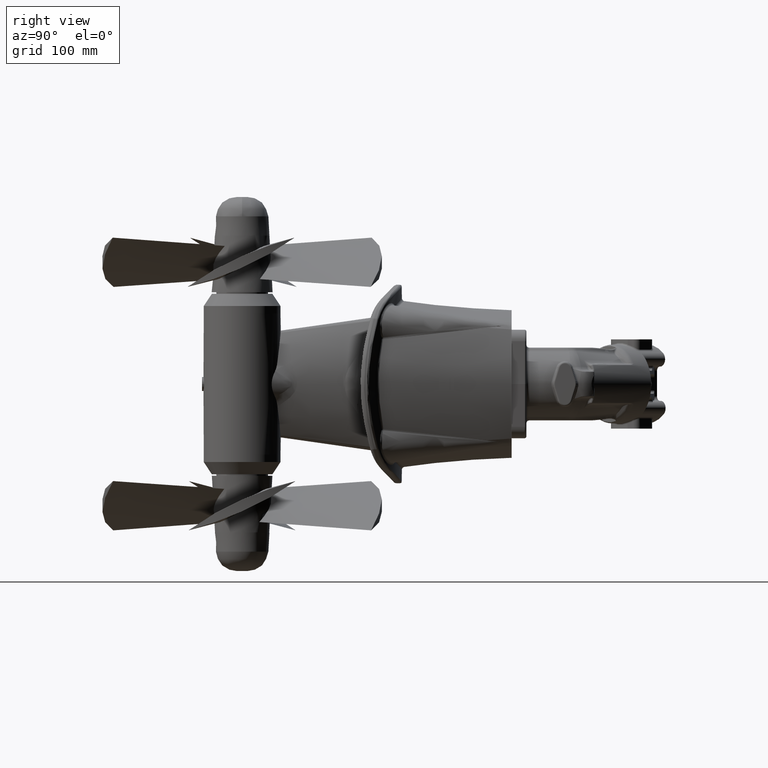
[diagram: clean part render]
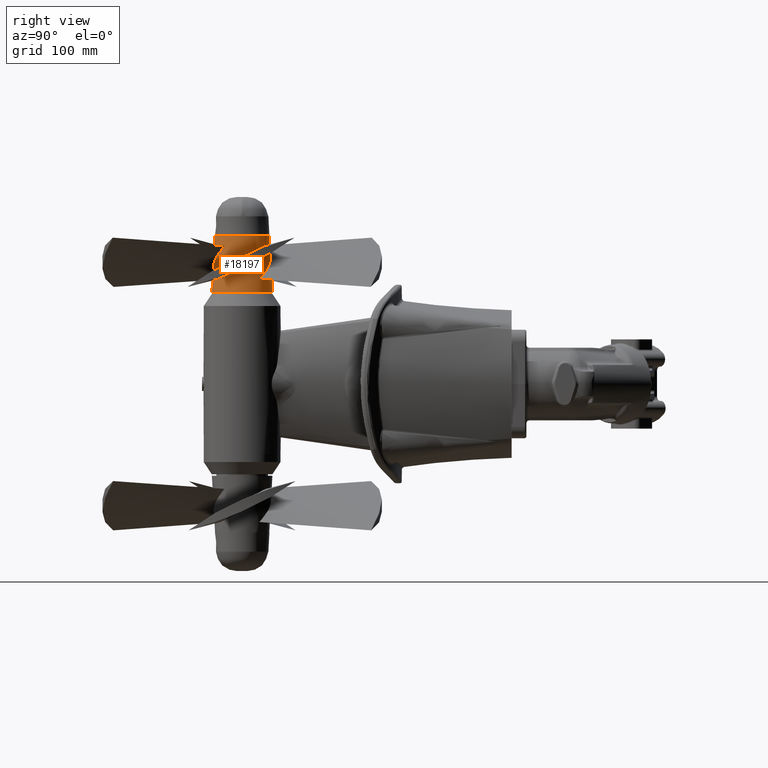
[diagram: same view with one face highlighted and labeled with its STEP entity id]
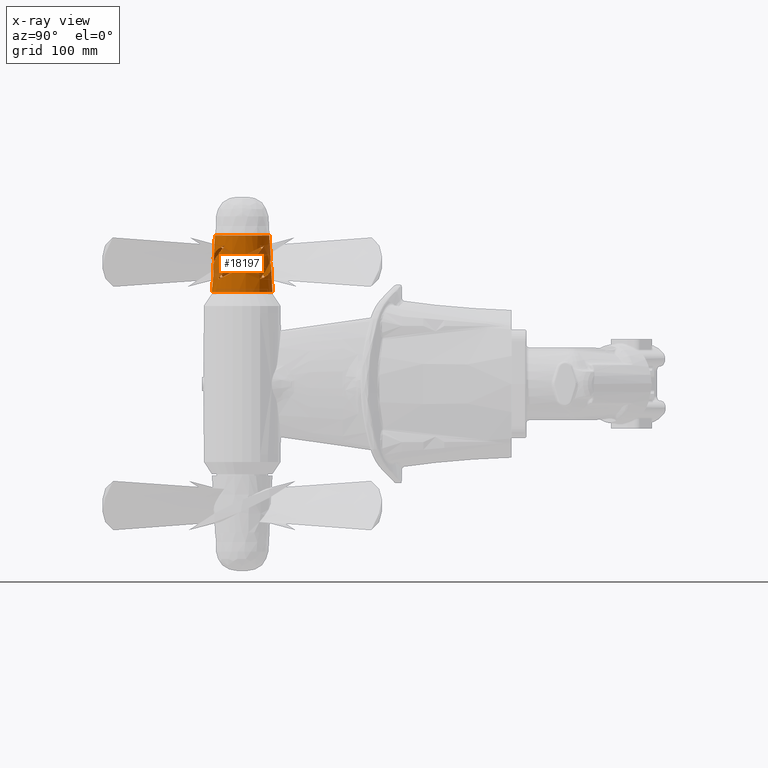
[diagram: x-ray of the same camera — body ghosted, the highlighted face saturated]
A machine part, right view. The second image highlights one B-rep face of the part: STEP entity #18197.
The next image is the same camera in x-ray: the body ghosted, the highlighted face saturated — about 16% of this face is hidden behind the body in this view.
In plain terms, the highlighted conical surface has half-angle 3.219 deg.
Its self-contained STEP definition (entity closure, byte-faithful):
#1759=CONICAL_SURFACE('',#19578,38.75,3.21949489685284);
#2105=B_SPLINE_CURVE_WITH_KNOTS('',3,(#28383,#28384,#28385,#28386,#28387,
#28388,#28389,#28390,#28391,#28392,#28393,#28394),.UNSPECIFIED.,.F.,.F.,
(4,2,2,2,2,4),(0.,2.53090143420264,4.73173549113663,6.61963387917274,7.59825769150815,
8.58581831324345),.UNSPECIFIED.);
#2108=B_SPLINE_CURVE_WITH_KNOTS('',3,(#28425,#28426,#28427,#28428,#28429,
#28430,#28431,#28432,#28433,#28434,#28435,#28436),.UNSPECIFIED.,.F.,.F.,
(4,2,2,2,2,4),(0.,2.77083612209621,5.2210690774772,7.26873717908105,8.29048922928614,
9.32154425047092),.UNSPECIFIED.);
#2111=B_SPLINE_CURVE_WITH_KNOTS('',3,(#28467,#28468,#28469,#28470,#28471,
#28472,#28473,#28474,#28475,#28476,#28477,#28478),.UNSPECIFIED.,.F.,.F.,
(4,2,2,2,2,4),(0.,2.77083612209637,5.22106907747769,7.26873717908181,8.29048922928706,
9.32154425047198),.UNSPECIFIED.);
#2113=B_SPLINE_CURVE_WITH_KNOTS('',3,(#28503,#28504,#28505,#28506,#28507,
#28508,#28509,#28510,#28511,#28512,#28513,#28514),.UNSPECIFIED.,.F.,.F.,
(4,2,2,2,2,4),(0.,2.7708361220963,5.2210690774772,7.26873717908074,8.29048922928575,
9.32154425047041),.UNSPECIFIED.);
#2114=B_SPLINE_CURVE_WITH_KNOTS('',3,(#28535,#28536,#28537,#28538,#28539,
#28540,#28541,#28542,#28543,#28544,#28545,#28546),.UNSPECIFIED.,.F.,.F.,
(4,2,2,2,2,4),(0.,2.53090143420265,4.73173549113668,6.61963387917285,7.59825769150825,
8.58581831324353),.UNSPECIFIED.);
#2115=B_SPLINE_CURVE_WITH_KNOTS('',3,(#28567,#28568,#28569,#28570,#28571,
#28572,#28573,#28574,#28575,#28576,#28577,#28578),.UNSPECIFIED.,.F.,.F.,
(4,2,2,2,2,4),(0.,2.53090143420266,4.73173549113668,6.61963387917283,7.59825769150818,
8.58581831324349),.UNSPECIFIED.);
#2119=B_SPLINE_CURVE_WITH_KNOTS('',3,(#28624,#28625,#28626,#28627,#28628,
#28629,#28630,#28631,#28632,#28633,#28634,#28635),.UNSPECIFIED.,.F.,.F.,
(4,2,2,2,2,4),(0.,2.77083612209629,5.22106907747768,7.26873717908204,8.29048922928739,
9.32154425047242),.UNSPECIFIED.);
#2121=B_SPLINE_CURVE_WITH_KNOTS('',3,(#28660,#28661,#28662,#28663,#28664,
#28665,#28666,#28667,#28668,#28669,#28670,#28671),.UNSPECIFIED.,.F.,.F.,
(4,2,2,2,2,4),(0.,2.53090143420265,4.73173549113665,6.61963387917278,7.59825769150814,
8.58581831324338),.UNSPECIFIED.);
#2938=FACE_BOUND('',#5002,.T.);
#2939=FACE_BOUND('',#5003,.T.);
#2940=FACE_BOUND('',#5004,.T.);
#2941=FACE_BOUND('',#5005,.T.);
#2942=FACE_BOUND('',#5006,.T.);
#3616=FACE_OUTER_BOUND('',#5001,.T.);
#5001=EDGE_LOOP('',(#12017));
#5002=EDGE_LOOP('',(#12018,#12019));
#5003=EDGE_LOOP('',(#12020,#12021));
#5004=EDGE_LOOP('',(#12022,#12023));
#5005=EDGE_LOOP('',(#12024,#12025));
#5006=EDGE_LOOP('',(#12026));
#6315=CIRCLE('',#19569,41.);
#6317=CIRCLE('',#19577,36.719375);
#7438=VERTEX_POINT('',#28298);
#7445=VERTEX_POINT('',#28377);
#7446=VERTEX_POINT('',#28382);
#7447=VERTEX_POINT('',#28419);
#7448=VERTEX_POINT('',#28424);
#7449=VERTEX_POINT('',#28461);
#7450=VERTEX_POINT('',#28466);
#7453=VERTEX_POINT('',#28618);
#7454=VERTEX_POINT('',#28623);
#7456=VERTEX_POINT('',#28676);
#9127=EDGE_CURVE('',#7438,#7438,#6315,.T.);
#9135=EDGE_CURVE('',#7446,#7445,#2105,.T.);
#9138=EDGE_CURVE('',#7448,#7447,#2108,.T.);
#9141=EDGE_CURVE('',#7450,#7449,#2111,.T.);
#9143=EDGE_CURVE('',#7445,#7446,#2113,.T.);
#9144=EDGE_CURVE('',#7447,#7448,#2114,.T.);
#9145=EDGE_CURVE('',#7449,#7450,#2115,.T.);
#9149=EDGE_CURVE('',#7454,#7453,#2119,.T.);
#9151=EDGE_CURVE('',#7453,#7454,#2121,.T.);
#9153=EDGE_CURVE('',#7456,#7456,#6317,.T.);
#12017=ORIENTED_EDGE('',*,*,#9153,.T.);
#12018=ORIENTED_EDGE('',*,*,#9143,.T.);
#12019=ORIENTED_EDGE('',*,*,#9135,.T.);
#12020=ORIENTED_EDGE('',*,*,#9138,.T.);
#12021=ORIENTED_EDGE('',*,*,#9144,.T.);
#12022=ORIENTED_EDGE('',*,*,#9141,.T.);
#12023=ORIENTED_EDGE('',*,*,#9145,.T.);
#12024=ORIENTED_EDGE('',*,*,#9149,.T.);
#12025=ORIENTED_EDGE('',*,*,#9151,.T.);
#12026=ORIENTED_EDGE('',*,*,#9127,.T.);
#18197=ADVANCED_FACE('',(#3616,#2938,#2939,#2940,#2941,#2942),#1759,.T.);
#19569=AXIS2_PLACEMENT_3D('',#28299,#21829,#21830);
#19577=AXIS2_PLACEMENT_3D('',#28677,#21845,#21846);
#19578=AXIS2_PLACEMENT_3D('',#28678,#21847,#21848);
#21829=DIRECTION('center_axis',(3.33066907387543E-16,-7.08372829135433E-16,
1.));
#21830=DIRECTION('ref_axis',(-1.39216225147322E-16,1.,3.53101461255383E-16));
#21845=DIRECTION('center_axis',(-3.33066907387543E-16,7.08372829135433E-16,
-1.));
#21846=DIRECTION('ref_axis',(-1.39216225147322E-16,1.,3.53101461255383E-16));
#21847=DIRECTION('center_axis',(-3.33066907387543E-16,7.08372829135433E-16,
-1.));
#21848=DIRECTION('ref_axis',(-1.39216225147322E-16,1.,3.53101461255383E-16));
#28298=CARTESIAN_POINT('',(3.89657678097519,-55.9938597725139,123.499999967749));
#28299=CARTESIAN_POINT('Origin',(3.89657678097519,-96.9938597725139,123.499999967749));
#28377=CARTESIAN_POINT('',(27.6491293800324,-129.185798205072,141.165641027835));
#28382=CARTESIAN_POINT('',(27.3109743126287,-67.7052887694353,185.768587494679));
#28383=CARTESIAN_POINT('Ctrl Pts',(27.3109743126287,-67.7052887694353,185.768587494679));
#28384=CARTESIAN_POINT('Ctrl Pts',(32.329239031535,-71.3031043216187,180.020149164373));
#28385=CARTESIAN_POINT('Ctrl Pts',(36.5488842721572,-76.2331656458964,174.558454258385));
#28386=CARTESIAN_POINT('Ctrl Pts',(41.7981266543163,-87.3945759552779,164.816981260339));
#28387=CARTESIAN_POINT('Ctrl Pts',(43.1191187652685,-93.2711142398667,160.573188636911));
#28388=CARTESIAN_POINT('Ctrl Pts',(42.8120293378749,-104.714140902338,153.355073185304));
#28389=CARTESIAN_POINT('Ctrl Pts',(41.5744702464356,-110.101574144772,150.353764095318));
#28390=CARTESIAN_POINT('Ctrl Pts',(37.8266797712903,-117.835721354314,146.400239284937));
#28391=CARTESIAN_POINT('Ctrl Pts',(36.2291895840969,-120.367646067788,145.171956660382));
#28392=CARTESIAN_POINT('Ctrl Pts',(32.3869963427605,-125.10265947605,142.961519360308));
#28393=CARTESIAN_POINT('Ctrl Pts',(30.1557206387348,-127.278503549173,141.992875654343));
#28394=CARTESIAN_POINT('Ctrl Pts',(27.6491293800324,-129.185798205072,141.165641027835));
#28419=CARTESIAN_POINT('',(33.1851477840539,-120.408257304167,185.768587494679));
#28424=CARTESIAN_POINT('',(-28.2953616515826,-120.746412371571,141.165641027835));
#28425=CARTESIAN_POINT('Ctrl Pts',(-28.2953616515826,-120.746412371571,
141.165641027835));
#28426=CARTESIAN_POINT('Ctrl Pts',(-24.1025109405495,-125.814727048533,
147.649321265374));
#28427=CARTESIAN_POINT('Ctrl Pts',(-18.622021384722,-129.946688662923,153.432004765235));
#28428=CARTESIAN_POINT('Ctrl Pts',(-6.59960933106941,-134.782362483971,
163.576407499761));
#28429=CARTESIAN_POINT('Ctrl Pts',(-0.524201946453303,-135.723696559672,
167.783372959377));
#28430=CARTESIAN_POINT('Ctrl Pts',(10.5547662329151,-134.872720724748,174.595853825637));
#28431=CARTESIAN_POINT('Ctrl Pts',(15.6482120527589,-133.499231343484,177.388665819661));
#28432=CARTESIAN_POINT('Ctrl Pts',(22.8328755466919,-129.778357438951,181.020053348494));
#28433=CARTESIAN_POINT('Ctrl Pts',(25.1267209090755,-128.274225427326,182.125394252898));
#28434=CARTESIAN_POINT('Ctrl Pts',(29.4316481434251,-124.721360665296,184.124658071006));
#28435=CARTESIAN_POINT('Ctrl Pts',(31.4216360739712,-122.682706564118,185.008062327915));
#28436=CARTESIAN_POINT('Ctrl Pts',(33.1851477840539,-120.408257304168,185.768587494679));
#28461=CARTESIAN_POINT('',(-19.5178207506783,-126.282430775593,185.768587494679));
#28466=CARTESIAN_POINT('',(-19.855975818082,-64.8019213399562,141.165641027835));
#28467=CARTESIAN_POINT('Ctrl Pts',(-19.855975818082,-64.8019213399562,141.165641027835));
#28468=CARTESIAN_POINT('Ctrl Pts',(-24.924290495044,-68.9947720509895,147.649321265375));
#28469=CARTESIAN_POINT('Ctrl Pts',(-29.0562521094338,-74.4752616068172,
153.432004765235));
#28470=CARTESIAN_POINT('Ctrl Pts',(-33.8919259304816,-86.4976736604694,
163.576407499761));
#28471=CARTESIAN_POINT('Ctrl Pts',(-34.8332600061833,-92.5730810450855,
167.783372959377));
#28472=CARTESIAN_POINT('Ctrl Pts',(-33.9822841712585,-103.652049224454,
174.595853825637));
#28473=CARTESIAN_POINT('Ctrl Pts',(-32.6087947899949,-108.745495044298,
177.388665819661));
#28474=CARTESIAN_POINT('Ctrl Pts',(-28.8879208854619,-115.930158538231,
181.020053348494));
#28475=CARTESIAN_POINT('Ctrl Pts',(-27.3837888738373,-118.224003900614,
182.125394252898));
#28476=CARTESIAN_POINT('Ctrl Pts',(-23.8309241118067,-122.528931134964,
184.124658071006));
#28477=CARTESIAN_POINT('Ctrl Pts',(-21.7922700106285,-124.51891906551,185.008062327915));
#28478=CARTESIAN_POINT('Ctrl Pts',(-19.5178207506783,-126.282430775593,
185.768587494679));
#28503=CARTESIAN_POINT('Ctrl Pts',(27.6491293800324,-129.185798205072,141.165641027835));
#28504=CARTESIAN_POINT('Ctrl Pts',(32.7174440569943,-124.992947494038,147.649321265374));
#28505=CARTESIAN_POINT('Ctrl Pts',(36.8494056713841,-119.512457938211,153.432004765235));
#28506=CARTESIAN_POINT('Ctrl Pts',(41.6850794924317,-107.490045884559,163.57640749976));
#28507=CARTESIAN_POINT('Ctrl Pts',(42.6264135681338,-101.414638499943,167.783372959377));
#28508=CARTESIAN_POINT('Ctrl Pts',(41.775437733209,-90.3356703205741,174.595853825637));
#28509=CARTESIAN_POINT('Ctrl Pts',(40.4019483519453,-85.2422245007303,177.388665819661));
#28510=CARTESIAN_POINT('Ctrl Pts',(36.6810744474123,-78.0575610067971,181.020053348494));
#28511=CARTESIAN_POINT('Ctrl Pts',(35.1769424357877,-75.7637156444136,182.125394252898));
#28512=CARTESIAN_POINT('Ctrl Pts',(31.6240776737572,-71.4587884100641,184.124658071006));
#28513=CARTESIAN_POINT('Ctrl Pts',(29.5854235725789,-69.4688004795181,185.008062327915));
#28514=CARTESIAN_POINT('Ctrl Pts',(27.3109743126287,-67.7052887694353,185.768587494679));
#28535=CARTESIAN_POINT('Ctrl Pts',(33.1851477840539,-120.408257304168,185.768587494679));
#28536=CARTESIAN_POINT('Ctrl Pts',(29.5873322318705,-125.426522023074,180.020149164373));
#28537=CARTESIAN_POINT('Ctrl Pts',(24.6572709075928,-129.646167263696,174.558454258385));
#28538=CARTESIAN_POINT('Ctrl Pts',(13.4958605982112,-134.895409645855,164.816981260338));
#28539=CARTESIAN_POINT('Ctrl Pts',(7.61932231362239,-136.216401756807,160.573188636911));
#28540=CARTESIAN_POINT('Ctrl Pts',(-3.8237043488491,-135.909312329414,153.355073185304));
#28541=CARTESIAN_POINT('Ctrl Pts',(-9.21113759128257,-134.671753237974,
150.353764095318));
#28542=CARTESIAN_POINT('Ctrl Pts',(-16.9452848008248,-130.923962762829,
146.400239284937));
#28543=CARTESIAN_POINT('Ctrl Pts',(-19.4772095142987,-129.326472575636,
145.171956660382));
#28544=CARTESIAN_POINT('Ctrl Pts',(-24.2122229225604,-125.484279334299,
142.961519360308));
#28545=CARTESIAN_POINT('Ctrl Pts',(-26.3880669956843,-123.253003630274,
141.992875654343));
#28546=CARTESIAN_POINT('Ctrl Pts',(-28.2953616515826,-120.746412371571,
141.165641027835));
#28567=CARTESIAN_POINT('Ctrl Pts',(-19.5178207506783,-126.282430775593,
185.768587494679));
#28568=CARTESIAN_POINT('Ctrl Pts',(-24.5360854695846,-122.684615223409,
180.020149164373));
#28569=CARTESIAN_POINT('Ctrl Pts',(-28.7557307102069,-117.754553899131,
174.558454258385));
#28570=CARTESIAN_POINT('Ctrl Pts',(-34.0049730923659,-106.59314358975,164.816981260339));
#28571=CARTESIAN_POINT('Ctrl Pts',(-35.3259652033181,-100.716605305161,
160.573188636911));
#28572=CARTESIAN_POINT('Ctrl Pts',(-35.0188757759245,-89.2735786426897,
153.355073185304));
#28573=CARTESIAN_POINT('Ctrl Pts',(-33.7813166844852,-83.8861454002562,
150.353764095319));
#28574=CARTESIAN_POINT('Ctrl Pts',(-30.03352620934,-76.151998190714,146.400239284937));
#28575=CARTESIAN_POINT('Ctrl Pts',(-28.4360360221466,-73.6200734772401,
145.171956660382));
#28576=CARTESIAN_POINT('Ctrl Pts',(-24.59384278081,-68.8850600689781,142.961519360308));
#28577=CARTESIAN_POINT('Ctrl Pts',(-22.3625670767843,-66.7092159958544,
141.992875654343));
#28578=CARTESIAN_POINT('Ctrl Pts',(-19.855975818082,-64.8019213399561,141.165641027835));
#28618=CARTESIAN_POINT('',(-25.3919942221035,-73.5794622408605,185.768587494679));
#28623=CARTESIAN_POINT('',(36.088515213533,-73.2413071734567,141.165641027835));
#28624=CARTESIAN_POINT('Ctrl Pts',(36.088515213533,-73.2413071734567,141.165641027835));
#28625=CARTESIAN_POINT('Ctrl Pts',(31.8956645024998,-68.1729924964949,147.649321265374));
#28626=CARTESIAN_POINT('Ctrl Pts',(26.4151749466722,-64.041030882105,153.432004765235));
#28627=CARTESIAN_POINT('Ctrl Pts',(14.3927628930193,-59.205357061057,163.576407499762));
#28628=CARTESIAN_POINT('Ctrl Pts',(8.31735550840309,-58.2640229853555,167.783372959378));
#28629=CARTESIAN_POINT('Ctrl Pts',(-2.76161267096465,-59.1149988202802,
174.595853825637));
#28630=CARTESIAN_POINT('Ctrl Pts',(-7.85505849080847,-60.4884882015439,
177.388665819661));
#28631=CARTESIAN_POINT('Ctrl Pts',(-15.0397219847415,-64.2093621060768,
181.020053348494));
#28632=CARTESIAN_POINT('Ctrl Pts',(-17.3335673471251,-65.7134941177015,
182.125394252898));
#28633=CARTESIAN_POINT('Ctrl Pts',(-21.6384945814747,-69.2663588797321,
184.124658071006));
#28634=CARTESIAN_POINT('Ctrl Pts',(-23.6284825120207,-71.3050129809103,
185.008062327915));
#28635=CARTESIAN_POINT('Ctrl Pts',(-25.3919942221035,-73.5794622408605,
185.768587494679));
#28660=CARTESIAN_POINT('Ctrl Pts',(-25.3919942221035,-73.5794622408605,
185.768587494679));
#28661=CARTESIAN_POINT('Ctrl Pts',(-21.7941786699201,-68.5611975219542,
180.020149164373));
#28662=CARTESIAN_POINT('Ctrl Pts',(-16.8641173456423,-64.3415522813319,
174.558454258385));
#28663=CARTESIAN_POINT('Ctrl Pts',(-5.70270703626087,-59.0923098991729,
164.816981260339));
#28664=CARTESIAN_POINT('Ctrl Pts',(0.173831248327929,-57.7713177882207,
160.573188636911));
#28665=CARTESIAN_POINT('Ctrl Pts',(11.6168579107994,-58.0784072156142,153.355073185304));
#28666=CARTESIAN_POINT('Ctrl Pts',(17.0042911532329,-59.3159663070535,150.353764095319));
#28667=CARTESIAN_POINT('Ctrl Pts',(24.7384383627752,-63.0637567821988,146.400239284937));
#28668=CARTESIAN_POINT('Ctrl Pts',(27.270363076249,-64.6612469693922,145.171956660382));
#28669=CARTESIAN_POINT('Ctrl Pts',(32.0053764845108,-68.5034402107286,142.961519360308));
#28670=CARTESIAN_POINT('Ctrl Pts',(34.1812205576347,-70.7347159147544,141.992875654343));
#28671=CARTESIAN_POINT('Ctrl Pts',(36.088515213533,-73.2413071734567,141.165641027835));
#28676=CARTESIAN_POINT('',(3.89657678097522,-133.713234772514,199.599999967749));
#28677=CARTESIAN_POINT('Origin',(3.89657678097522,-96.993859772514,199.599999967749));
#28678=CARTESIAN_POINT('Origin',(3.89657678097521,-96.993859772514,163.499999967749));